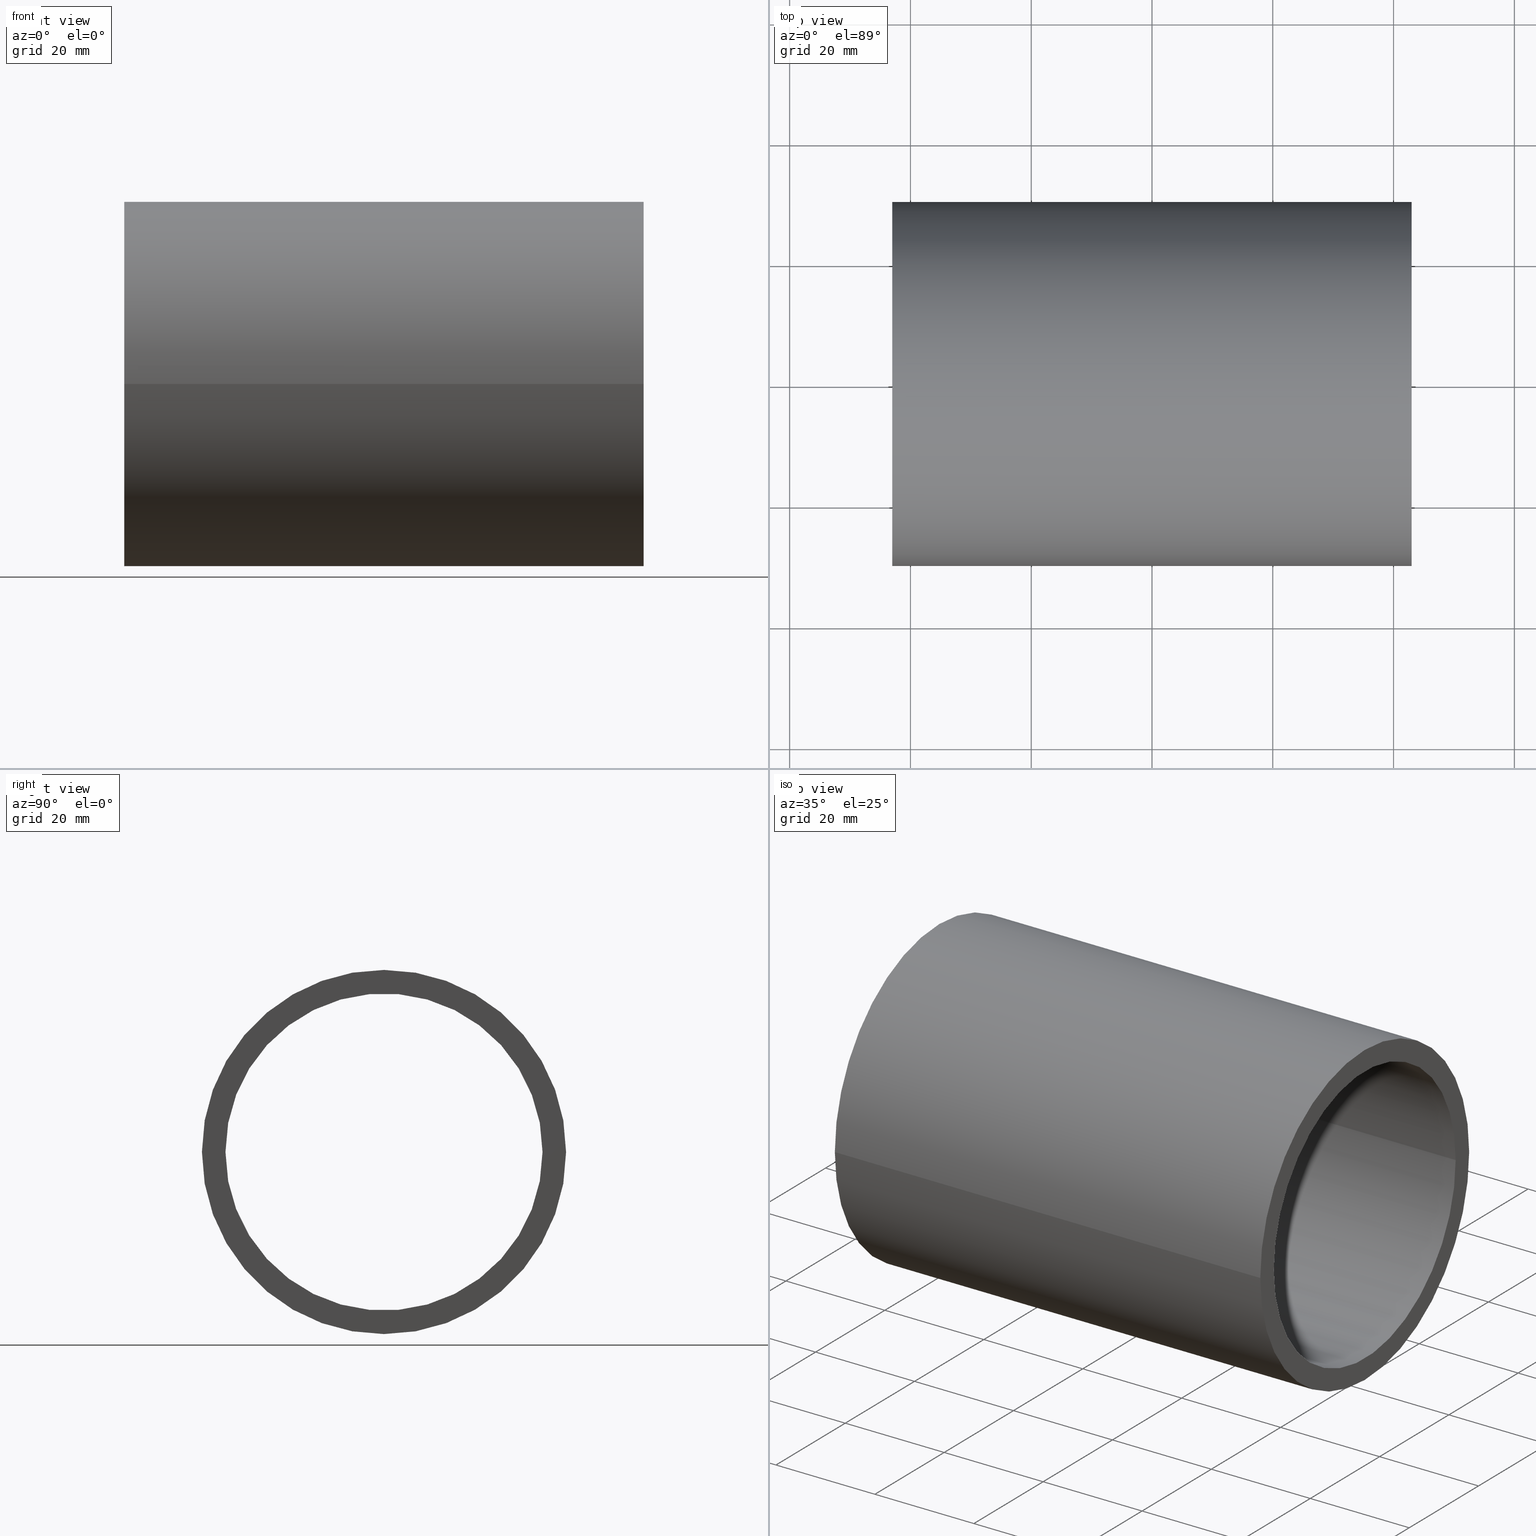
[diagram: canonical four-view strip — front | top / right | iso, engineering-drawing reading convention]
A machine part, canonical four-view strip (front | top / right | iso — engineering-drawing reading convention). The complete STEP part file that produces these views, byte-faithful:
ISO-10303-21;
HEADER;
FILE_DESCRIPTION (( 'STEP AP203' ),
    '1' );
FILE_NAME ('3674-35-11_REV_.step',
    '2026-02-06T22:19:11',
    ( '' ),
    ( '' ),
    'SwSTEP 2.0',
    'SolidWorks 2025',
    '' );
FILE_SCHEMA (( 'CONFIG_CONTROL_DESIGN' ));
ENDSEC;

DATA;
#1 = PERSON_AND_ORGANIZATION_ROLE ( 'classification_officer' ) ;
#2 = ORIENTED_EDGE ( 'NONE', *, *, #148, .F. ) ;
#3 = EDGE_CURVE ( 'NONE', #152, #136, #21, .T. ) ;
#4 = EDGE_LOOP ( 'NONE', ( #162, #175 ) ) ;
#5 = MANIFOLD_SOLID_BREP ( 'Stainless chs 60.3 X 3.9 CHS(1)', #69 ) ;
#6 = VERTEX_POINT ( 'NONE', #74 ) ;
#7 = SECURITY_CLASSIFICATION ( '', '', #233 ) ;
#8 = ORIENTED_EDGE ( 'NONE', *, *, #3, .F. ) ;
#9 = DIRECTION ( 'NONE',  ( 2.643388153869420311E-16, -1.000000000000000000, 0.000000000000000000 ) ) ;
#10 = CYLINDRICAL_SURFACE ( 'NONE', #221, 26.25000000000000000 ) ;
#11 = APPROVAL ( #177, 'UNSPECIFIED' ) ;
#12 = DIRECTION ( 'NONE',  ( 1.000000000000000000, 3.061616997868382648E-16, -0.000000000000000000 ) ) ;
#13 = CARTESIAN_POINT ( 'NONE',  ( -43.00000000000000000, -1.665519646840400224E-14, 0.000000000000000000 ) ) ;
#14 =( NAMED_UNIT ( * ) SI_UNIT ( $, .STERADIAN. ) SOLID_ANGLE_UNIT ( ) );
#15 = AXIS2_PLACEMENT_3D ( 'NONE', #13, #107, #127 ) ;
#16 = DATE_TIME_ROLE ( 'creation_date' ) ;
#17 = PERSON_AND_ORGANIZATION ( #50, #161 ) ;
#18 = APPROVAL_ROLE ( '' ) ;
#19 = ORIENTED_EDGE ( 'NONE', *, *, #148, .T. ) ;
#20 = AXIS2_PLACEMENT_3D ( 'NONE', #103, #187, #9 ) ;
#21 = LINE ( 'NONE', #236, #121 ) ;
#22 = VERTEX_POINT ( 'NONE', #160 ) ;
#23 = CARTESIAN_POINT ( 'NONE',  ( 43.00000000000000000, 9.674709713264084593E-15, 0.000000000000000000 ) ) ;
#24 = DIRECTION ( 'NONE',  ( 1.000000000000000000, 3.061616997868382648E-16, -0.000000000000000000 ) ) ;
#25 = ORIENTED_EDGE ( 'NONE', *, *, #57, .F. ) ;
#26 = DESIGN_CONTEXT ( 'detailed design', #62, 'design' ) ;
#27 = CARTESIAN_POINT ( 'NONE',  ( -43.00000000000000000, -1.665519646840400224E-14, 0.000000000000000000 ) ) ;
#28 = DIRECTION ( 'NONE',  ( -1.000000000000000000, -3.061616997868382648E-16, 0.000000000000000000 ) ) ;
#29 = CYLINDRICAL_SURFACE ( 'NONE', #110, 30.14999999999999858 ) ;
#30 =( NAMED_UNIT ( * ) PLANE_ANGLE_UNIT ( ) SI_UNIT ( $, .RADIAN. ) );
#31 = VECTOR ( 'NONE', #12, 1000.000000000000000 ) ;
#32 = PERSON_AND_ORGANIZATION_ROLE ( 'design_supplier' ) ;
#33 = PERSON_AND_ORGANIZATION_ROLE ( 'creator' ) ;
#34 = CC_DESIGN_DATE_AND_TIME_ASSIGNMENT ( #48, #16, ( #227 ) ) ;
#35 = ORIENTED_EDGE ( 'NONE', *, *, #44, .F. ) ;
#36 = DIRECTION ( 'NONE',  ( 3.061616997868382648E-16, -1.000000000000000000, 0.000000000000000000 ) ) ;
#37 = FACE_BOUND ( 'NONE', #91, .T. ) ;
#38 = AXIS2_PLACEMENT_3D ( 'NONE', #85, #173, #171 ) ;
#39 = DIRECTION ( 'NONE',  ( 2.301457347896261609E-16, -1.000000000000000000, 0.000000000000000000 ) ) ;
#40 = AXIS2_PLACEMENT_3D ( 'NONE', #140, #141, #39 ) ;
#41 = CARTESIAN_POINT ( 'NONE',  ( 43.00000000000000000, 9.674709713264084593E-15, 0.000000000000000000 ) ) ;
#42 = DIRECTION ( 'NONE',  ( -2.301457347896261609E-16, 1.000000000000000000, 0.000000000000000000 ) ) ;
#43 = APPROVAL ( #134, 'UNSPECIFIED' ) ;
#44 = EDGE_CURVE ( 'NONE', #152, #118, #172, .T. ) ;
#45 = CARTESIAN_POINT ( 'NONE',  ( 43.00000000000000000, -30.14999999999998792, 3.692310099429270397E-15 ) ) ;
#46 = APPROVAL_PERSON_ORGANIZATION ( #154, #43, #195 ) ;
#47 = EDGE_CURVE ( 'NONE', #6, #184, #216, .T. ) ;
#48 = DATE_AND_TIME ( #135, #232 ) ;
#49 = LOCAL_TIME ( 9, 19, 11.00000000000000000, #210 ) ;
#50 = PERSON ( 'UNSPECIFIED', 'UNSPECIFIED', 'UNSPECIFIED', ('UNSPECIFIED'), ('UNSPECIFIED'), ('UNSPECIFIED') ) ;
#51 = ORIENTED_EDGE ( 'NONE', *, *, #89, .T. ) ;
#52 = DIRECTION ( 'NONE',  ( 2.643388153869420311E-16, -1.000000000000000000, 0.000000000000000000 ) ) ;
#53 = ORIENTED_EDGE ( 'NONE', *, *, #188, .F. ) ;
#54 = CIRCLE ( 'NONE', #242, 26.25000000000000000 ) ;
#55 = DIRECTION ( 'NONE',  ( 1.000000000000000000, 3.061616997868382648E-16, -0.000000000000000000 ) ) ;
#56 = FACE_OUTER_BOUND ( 'NONE', #105, .T. ) ;
#57 = EDGE_CURVE ( 'NONE', #22, #133, #87, .T. ) ;
#58 = AXIS2_PLACEMENT_3D ( 'NONE', #199, #201, #52 ) ;
#59 = DIRECTION ( 'NONE',  ( -2.301457347896261609E-16, 1.000000000000000000, 0.000000000000000000 ) ) ;
#60 = LINE ( 'NONE', #111, #31 ) ;
#61 = LOCAL_TIME ( 9, 19, 11.00000000000000000, #92 ) ;
#62 = APPLICATION_CONTEXT ( 'configuration controlled 3d designs of mechanical parts and assemblies' ) ;
#63 = DIRECTION ( 'NONE',  ( 1.000000000000000000, 3.061616997868382648E-16, -0.000000000000000000 ) ) ;
#64 = CARTESIAN_POINT ( 'NONE',  ( -43.00000000000000000, 26.24999999999998224, 0.000000000000000000 ) ) ;
#65 = DATE_AND_TIME ( #213, #142 ) ;
#66 = ADVANCED_FACE ( 'NONE', ( #239, #124 ), #238, .T. ) ;
#67 = COORDINATED_UNIVERSAL_TIME_OFFSET ( 10, 0, .AHEAD. ) ;
#68 = ADVANCED_FACE ( 'NONE', ( #37, #56 ), #123, .F. ) ;
#69 = CLOSED_SHELL ( 'NONE', ( #99, #129, #157, #104, #66, #68 ) ) ;
#70 = APPROVAL_STATUS ( 'not_yet_approved' ) ;
#71 = APPROVAL_DATE_TIME ( #156, #119 ) ;
#72 = SHAPE_DEFINITION_REPRESENTATION ( #83, #117 ) ;
#73 = AXIS2_PLACEMENT_3D ( 'NONE', #165, #220, #36 ) ;
#74 = CARTESIAN_POINT ( 'NONE',  ( -42.99999999999999289, -30.15000000000001634, 3.692310099429271974E-15 ) ) ;
#75 = ORIENTED_EDGE ( 'NONE', *, *, #90, .T. ) ;
#76 = ORIENTED_EDGE ( 'NONE', *, *, #204, .T. ) ;
#77 = DIRECTION ( 'NONE',  ( 2.643388153869420311E-16, -1.000000000000000000, 0.000000000000000000 ) ) ;
#78 = FACE_OUTER_BOUND ( 'NONE', #217, .T. ) ;
#79 = EDGE_CURVE ( 'NONE', #136, #179, #182, .T. ) ;
#80 = PRODUCT_RELATED_PRODUCT_CATEGORY ( 'detail', '', ( #206 ) ) ;
#81 = CARTESIAN_POINT ( 'NONE',  ( -43.00000000000000000, -1.665519646840400224E-14, 0.000000000000000000 ) ) ;
#82 = CARTESIAN_POINT ( 'NONE',  ( -43.00000000000000000, 30.14999999999998082, 0.000000000000000000 ) ) ;
#83 = PRODUCT_DEFINITION_SHAPE ( 'NONE', 'NONE',  #227 ) ;
#84 = DIRECTION ( 'NONE',  ( -1.000000000000000000, -3.061616997868382648E-16, 0.000000000000000000 ) ) ;
#85 = CARTESIAN_POINT ( 'NONE',  ( 0.000000000000000000, 0.000000000000000000, 0.000000000000000000 ) ) ;
#86 = FACE_OUTER_BOUND ( 'NONE', #98, .T. ) ;
#87 = CIRCLE ( 'NONE', #108, 30.14999999999999858 ) ;
#88 = CIRCLE ( 'NONE', #183, 30.14999999999999858 ) ;
#89 = EDGE_CURVE ( 'NONE', #6, #133, #143, .T. ) ;
#90 = EDGE_CURVE ( 'NONE', #118, #152, #241, .T. ) ;
#91 = EDGE_LOOP ( 'NONE', ( #125, #218 ) ) ;
#92 = COORDINATED_UNIVERSAL_TIME_OFFSET ( 10, 0, .AHEAD. ) ;
#93 = CIRCLE ( 'NONE', #144, 30.14999999999999858 ) ;
#94 = PERSON_AND_ORGANIZATION_ROLE ( 'design_owner' ) ;
#95 = APPROVAL_DATE_TIME ( #150, #11 ) ;
#96 = APPROVAL_PERSON_ORGANIZATION ( #248, #119, #18 ) ;
#97 = AXIS2_PLACEMENT_3D ( 'NONE', #41, #186, #77 ) ;
#98 = EDGE_LOOP ( 'NONE', ( #2, #75, #214, #53 ) ) ;
#99 = ADVANCED_FACE ( 'NONE', ( #78 ), #126, .T. ) ;
#100 = ORIENTED_EDGE ( 'NONE', *, *, #89, .F. ) ;
#101 = CC_DESIGN_APPROVAL ( #11, ( #227 ) ) ;
#102 = DIRECTION ( 'NONE',  ( -1.000000000000000000, -3.061616997868382648E-16, 0.000000000000000000 ) ) ;
#103 = CARTESIAN_POINT ( 'NONE',  ( -43.00000000000000000, -1.665519646840400224E-14, 0.000000000000000000 ) ) ;
#104 = ADVANCED_FACE ( 'NONE', ( #167 ), #29, .T. ) ;
#105 = EDGE_LOOP ( 'NONE', ( #25, #181 ) ) ;
#106 = APPROVAL_PERSON_ORGANIZATION ( #17, #11, #176 ) ;
#107 = DIRECTION ( 'NONE',  ( 1.000000000000000000, 3.061616997868382648E-16, -0.000000000000000000 ) ) ;
#108 = AXIS2_PLACEMENT_3D ( 'NONE', #137, #215, #203 ) ;
#109 = DIRECTION ( 'NONE',  ( 1.000000000000000000, 3.061616997868382648E-16, -0.000000000000000000 ) ) ;
#110 = AXIS2_PLACEMENT_3D ( 'NONE', #81, #240, #59 ) ;
#111 = CARTESIAN_POINT ( 'NONE',  ( -43.00000000000000000, 30.14999999999998082, 0.000000000000000000 ) ) ;
#112 = COORDINATED_UNIVERSAL_TIME_OFFSET ( 10, 0, .AHEAD. ) ;
#113 = AXIS2_PLACEMENT_3D ( 'NONE', #23, #102, #202 ) ;
#114 = COORDINATED_UNIVERSAL_TIME_OFFSET ( 10, 0, .AHEAD. ) ;
#115 = PERSON_AND_ORGANIZATION ( #50, #161 ) ;
#116 = PERSON_AND_ORGANIZATION ( #50, #161 ) ;
#117 = ADVANCED_BREP_SHAPE_REPRESENTATION ( '3674-35-11_REV_', ( #5, #38 ), #155 ) ;
#118 = VERTEX_POINT ( 'NONE', #147 ) ;
#119 = APPROVAL ( #70, 'UNSPECIFIED' ) ;
#120 = CC_DESIGN_DATE_AND_TIME_ASSIGNMENT ( #65, #153, ( #7 ) ) ;
#121 = VECTOR ( 'NONE', #55, 1000.000000000000000 ) ;
#122 = EDGE_LOOP ( 'NONE', ( #159, #19, #235, #8 ) ) ;
#123 = PLANE ( 'NONE',  #113 ) ;
#124 = FACE_OUTER_BOUND ( 'NONE', #4, .T. ) ;
#125 = ORIENTED_EDGE ( 'NONE', *, *, #79, .T. ) ;
#126 = CYLINDRICAL_SURFACE ( 'NONE', #163, 30.14999999999999858 ) ;
#127 = DIRECTION ( 'NONE',  ( -2.643388153869420311E-16, 1.000000000000000000, 0.000000000000000000 ) ) ;
#128 = MECHANICAL_CONTEXT ( 'NONE', #193, 'mechanical' ) ;
#129 = ADVANCED_FACE ( 'NONE', ( #192 ), #244, .F. ) ;
#130 = PERSON_AND_ORGANIZATION ( #50, #161 ) ;
#131 = PRODUCT_DEFINITION_FORMATION_WITH_SPECIFIED_SOURCE ( 'ANY', '', #206, .NOT_KNOWN. ) ;
#132 = APPLICATION_PROTOCOL_DEFINITION ( 'international standard', 'config_control_design', 1994, #62 ) ;
#133 = VERTEX_POINT ( 'NONE', #45 ) ;
#134 = APPROVAL_STATUS ( 'not_yet_approved' ) ;
#135 = CALENDAR_DATE ( 2026, 7, 2 ) ;
#136 = VERTEX_POINT ( 'NONE', #190 ) ;
#137 = CARTESIAN_POINT ( 'NONE',  ( 43.00000000000000000, 9.674709713264084593E-15, 0.000000000000000000 ) ) ;
#138 = VECTOR ( 'NONE', #24, 1000.000000000000000 ) ;
#139 = VECTOR ( 'NONE', #109, 1000.000000000000000 ) ;
#140 = CARTESIAN_POINT ( 'NONE',  ( -43.00000000000000000, -1.665519646840400224E-14, 0.000000000000000000 ) ) ;
#141 = DIRECTION ( 'NONE',  ( -1.000000000000000000, -3.061616997868382648E-16, 0.000000000000000000 ) ) ;
#142 = LOCAL_TIME ( 9, 19, 11.00000000000000000, #114 ) ;
#143 = LINE ( 'NONE', #164, #138 ) ;
#144 = AXIS2_PLACEMENT_3D ( 'NONE', #191, #243, #208 ) ;
#145 = LINE ( 'NONE', #224, #139 ) ;
#146 = EDGE_CURVE ( 'NONE', #184, #6, #88, .T. ) ;
#147 = CARTESIAN_POINT ( 'NONE',  ( -42.99999999999999289, -26.25000000000001421, 3.214697847761803556E-15 ) ) ;
#148 = EDGE_CURVE ( 'NONE', #118, #179, #145, .T. ) ;
#149 = CARTESIAN_POINT ( 'NONE',  ( 43.00000000000000000, -26.24999999999998934, 3.214697847761801978E-15 ) ) ;
#150 = DATE_AND_TIME ( #196, #61 ) ;
#151 = PERSON_AND_ORGANIZATION ( #50, #161 ) ;
#152 = VERTEX_POINT ( 'NONE', #64 ) ;
#153 = DATE_TIME_ROLE ( 'classification_date' ) ;
#154 = PERSON_AND_ORGANIZATION ( #50, #161 ) ;
#155 =( GEOMETRIC_REPRESENTATION_CONTEXT ( 3 ) GLOBAL_UNCERTAINTY_ASSIGNED_CONTEXT ( ( #229 ) ) GLOBAL_UNIT_ASSIGNED_CONTEXT ( ( #225, #30, #14 ) ) REPRESENTATION_CONTEXT ( 'NONE', 'WORKASPACE' ) );
#156 = DATE_AND_TIME ( #174, #49 ) ;
#157 = ADVANCED_FACE ( 'NONE', ( #86 ), #10, .F. ) ;
#158 = CC_DESIGN_PERSON_AND_ORGANIZATION_ASSIGNMENT ( #249, #1, ( #7 ) ) ;
#159 = ORIENTED_EDGE ( 'NONE', *, *, #44, .T. ) ;
#160 = CARTESIAN_POINT ( 'NONE',  ( 42.99999999999999289, 30.15000000000000924, 0.000000000000000000 ) ) ;
#161 = ORGANIZATION ( 'UNSPECIFIED', 'UNSPECIFIED', '' ) ;
#162 = ORIENTED_EDGE ( 'NONE', *, *, #146, .T. ) ;
#163 = AXIS2_PLACEMENT_3D ( 'NONE', #209, #205, #42 ) ;
#164 = CARTESIAN_POINT ( 'NONE',  ( -42.99999999999999289, -30.15000000000001634, 3.692310099429270397E-15 ) ) ;
#165 = CARTESIAN_POINT ( 'NONE',  ( -43.00000000000000000, -1.665519646840400224E-14, 0.000000000000000000 ) ) ;
#166 = CC_DESIGN_APPROVAL ( #119, ( #131 ) ) ;
#167 = FACE_OUTER_BOUND ( 'NONE', #197, .T. ) ;
#168 = CC_DESIGN_PERSON_AND_ORGANIZATION_ASSIGNMENT ( #116, #32, ( #131 ) ) ;
#169 = DIRECTION ( 'NONE',  ( 2.643388153869420311E-16, -1.000000000000000000, 0.000000000000000000 ) ) ;
#170 = CARTESIAN_POINT ( 'NONE',  ( 43.00000000000000000, 9.674709713264084593E-15, 0.000000000000000000 ) ) ;
#171 = DIRECTION ( 'NONE',  ( 1.000000000000000000, 0.000000000000000000, 0.000000000000000000 ) ) ;
#172 = CIRCLE ( 'NONE', #58, 26.25000000000000000 ) ;
#173 = DIRECTION ( 'NONE',  ( 0.000000000000000000, 0.000000000000000000, 1.000000000000000000 ) ) ;
#174 = CALENDAR_DATE ( 2026, 7, 2 ) ;
#175 = ORIENTED_EDGE ( 'NONE', *, *, #47, .T. ) ;
#176 = APPROVAL_ROLE ( '' ) ;
#177 = APPROVAL_STATUS ( 'not_yet_approved' ) ;
#178 = DATE_AND_TIME ( #231, #212 ) ;
#179 = VERTEX_POINT ( 'NONE', #149 ) ;
#180 = CC_DESIGN_PERSON_AND_ORGANIZATION_ASSIGNMENT ( #130, #94, ( #206 ) ) ;
#181 = ORIENTED_EDGE ( 'NONE', *, *, #204, .F. ) ;
#182 = CIRCLE ( 'NONE', #97, 26.25000000000000000 ) ;
#183 = AXIS2_PLACEMENT_3D ( 'NONE', #27, #84, #194 ) ;
#184 = VERTEX_POINT ( 'NONE', #82 ) ;
#185 = ORIENTED_EDGE ( 'NONE', *, *, #219, .T. ) ;
#186 = DIRECTION ( 'NONE',  ( -1.000000000000000000, -3.061616997868382648E-16, 0.000000000000000000 ) ) ;
#187 = DIRECTION ( 'NONE',  ( -1.000000000000000000, -3.061616997868382648E-16, 0.000000000000000000 ) ) ;
#188 = EDGE_CURVE ( 'NONE', #179, #136, #54, .T. ) ;
#189 = CC_DESIGN_SECURITY_CLASSIFICATION ( #7, ( #131 ) ) ;
#190 = CARTESIAN_POINT ( 'NONE',  ( 42.99999999999999289, 26.25000000000000711, 0.000000000000000000 ) ) ;
#191 = CARTESIAN_POINT ( 'NONE',  ( 43.00000000000000000, 9.674709713264084593E-15, 0.000000000000000000 ) ) ;
#192 = FACE_OUTER_BOUND ( 'NONE', #122, .T. ) ;
#193 = APPLICATION_CONTEXT ( 'configuration controlled 3d designs of mechanical parts and assemblies' ) ;
#194 = DIRECTION ( 'NONE',  ( 2.301457347896261609E-16, -1.000000000000000000, 0.000000000000000000 ) ) ;
#195 = APPROVAL_ROLE ( '' ) ;
#196 = CALENDAR_DATE ( 2026, 7, 2 ) ;
#197 = EDGE_LOOP ( 'NONE', ( #100, #200, #185, #198 ) ) ;
#198 = ORIENTED_EDGE ( 'NONE', *, *, #57, .T. ) ;
#199 = CARTESIAN_POINT ( 'NONE',  ( -43.00000000000000000, -1.665519646840400224E-14, 0.000000000000000000 ) ) ;
#200 = ORIENTED_EDGE ( 'NONE', *, *, #146, .F. ) ;
#201 = DIRECTION ( 'NONE',  ( -1.000000000000000000, -3.061616997868382648E-16, 0.000000000000000000 ) ) ;
#202 = DIRECTION ( 'NONE',  ( 3.061616997868382648E-16, -1.000000000000000000, 0.000000000000000000 ) ) ;
#203 = DIRECTION ( 'NONE',  ( 2.301457347896261609E-16, -1.000000000000000000, 0.000000000000000000 ) ) ;
#204 = EDGE_CURVE ( 'NONE', #133, #22, #93, .T. ) ;
#205 = DIRECTION ( 'NONE',  ( 1.000000000000000000, 3.061616997868382648E-16, -0.000000000000000000 ) ) ;
#206 = PRODUCT ( '3674-35-11_REV_', '3674-35-11_REV_', '', ( #128 ) ) ;
#207 = DIRECTION ( 'NONE',  ( -2.643388153869420311E-16, 1.000000000000000000, 0.000000000000000000 ) ) ;
#208 = DIRECTION ( 'NONE',  ( 2.301457347896261609E-16, -1.000000000000000000, 0.000000000000000000 ) ) ;
#209 = CARTESIAN_POINT ( 'NONE',  ( -43.00000000000000000, -1.665519646840400224E-14, 0.000000000000000000 ) ) ;
#210 = COORDINATED_UNIVERSAL_TIME_OFFSET ( 10, 0, .AHEAD. ) ;
#211 = CC_DESIGN_PERSON_AND_ORGANIZATION_ASSIGNMENT ( #151, #246, ( #131 ) ) ;
#212 = LOCAL_TIME ( 9, 19, 11.00000000000000000, #112 ) ;
#213 = CALENDAR_DATE ( 2026, 7, 2 ) ;
#214 = ORIENTED_EDGE ( 'NONE', *, *, #3, .T. ) ;
#215 = DIRECTION ( 'NONE',  ( -1.000000000000000000, -3.061616997868382648E-16, 0.000000000000000000 ) ) ;
#216 = CIRCLE ( 'NONE', #40, 30.14999999999999858 ) ;
#217 = EDGE_LOOP ( 'NONE', ( #247, #51, #76, #230 ) ) ;
#218 = ORIENTED_EDGE ( 'NONE', *, *, #188, .T. ) ;
#219 = EDGE_CURVE ( 'NONE', #184, #22, #60, .T. ) ;
#220 = DIRECTION ( 'NONE',  ( -1.000000000000000000, -3.061616997868382648E-16, 0.000000000000000000 ) ) ;
#221 = AXIS2_PLACEMENT_3D ( 'NONE', #222, #63, #207 ) ;
#222 = CARTESIAN_POINT ( 'NONE',  ( -43.00000000000000000, -1.665519646840400224E-14, 0.000000000000000000 ) ) ;
#223 = APPLICATION_PROTOCOL_DEFINITION ( 'international standard', 'config_control_design', 1994, #193 ) ;
#224 = CARTESIAN_POINT ( 'NONE',  ( -42.99999999999999289, -26.25000000000001776, 3.214697847761801978E-15 ) ) ;
#225 =( LENGTH_UNIT ( ) NAMED_UNIT ( * ) SI_UNIT ( .MILLI., .METRE. ) );
#226 = CC_DESIGN_APPROVAL ( #43, ( #7 ) ) ;
#227 = PRODUCT_DEFINITION ( 'UNKNOWN', '', #131, #26 ) ;
#228 = APPROVAL_DATE_TIME ( #178, #43 ) ;
#229 = UNCERTAINTY_MEASURE_WITH_UNIT (LENGTH_MEASURE( 1.000000000000000082E-05 ), #225, 'distance_accuracy_value', 'NONE');
#230 = ORIENTED_EDGE ( 'NONE', *, *, #219, .F. ) ;
#231 = CALENDAR_DATE ( 2026, 7, 2 ) ;
#232 = LOCAL_TIME ( 9, 19, 11.00000000000000000, #67 ) ;
#233 = SECURITY_CLASSIFICATION_LEVEL ( 'unclassified' ) ;
#234 = ORIENTED_EDGE ( 'NONE', *, *, #90, .F. ) ;
#235 = ORIENTED_EDGE ( 'NONE', *, *, #79, .F. ) ;
#236 = CARTESIAN_POINT ( 'NONE',  ( -43.00000000000000000, 26.24999999999998224, 0.000000000000000000 ) ) ;
#237 = EDGE_LOOP ( 'NONE', ( #35, #234 ) ) ;
#238 = PLANE ( 'NONE',  #73 ) ;
#239 = FACE_BOUND ( 'NONE', #237, .T. ) ;
#240 = DIRECTION ( 'NONE',  ( 1.000000000000000000, 3.061616997868382648E-16, -0.000000000000000000 ) ) ;
#241 = CIRCLE ( 'NONE', #20, 26.25000000000000000 ) ;
#242 = AXIS2_PLACEMENT_3D ( 'NONE', #170, #28, #169 ) ;
#243 = DIRECTION ( 'NONE',  ( -1.000000000000000000, -3.061616997868382648E-16, 0.000000000000000000 ) ) ;
#244 = CYLINDRICAL_SURFACE ( 'NONE', #15, 26.25000000000000000 ) ;
#245 = CC_DESIGN_PERSON_AND_ORGANIZATION_ASSIGNMENT ( #115, #33, ( #227 ) ) ;
#246 = PERSON_AND_ORGANIZATION_ROLE ( 'creator' ) ;
#247 = ORIENTED_EDGE ( 'NONE', *, *, #47, .F. ) ;
#248 = PERSON_AND_ORGANIZATION ( #50, #161 ) ;
#249 = PERSON_AND_ORGANIZATION ( #50, #161 ) ;
ENDSEC;
END-ISO-10303-21;
